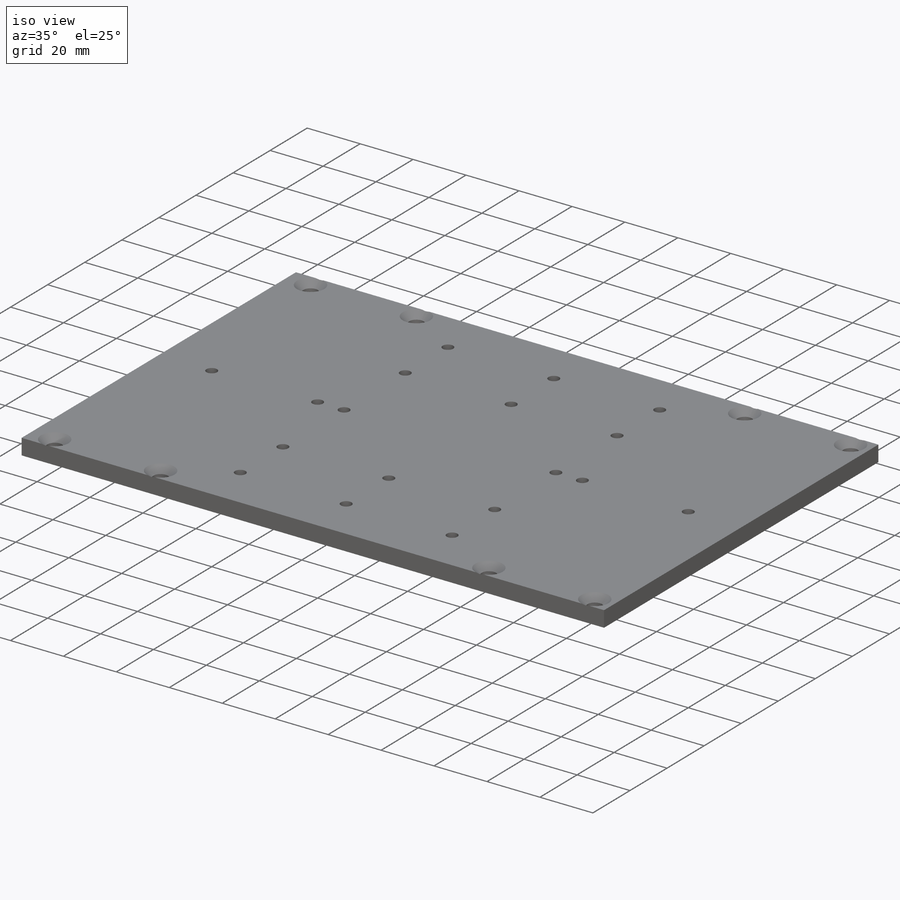
[diagram: iso view]
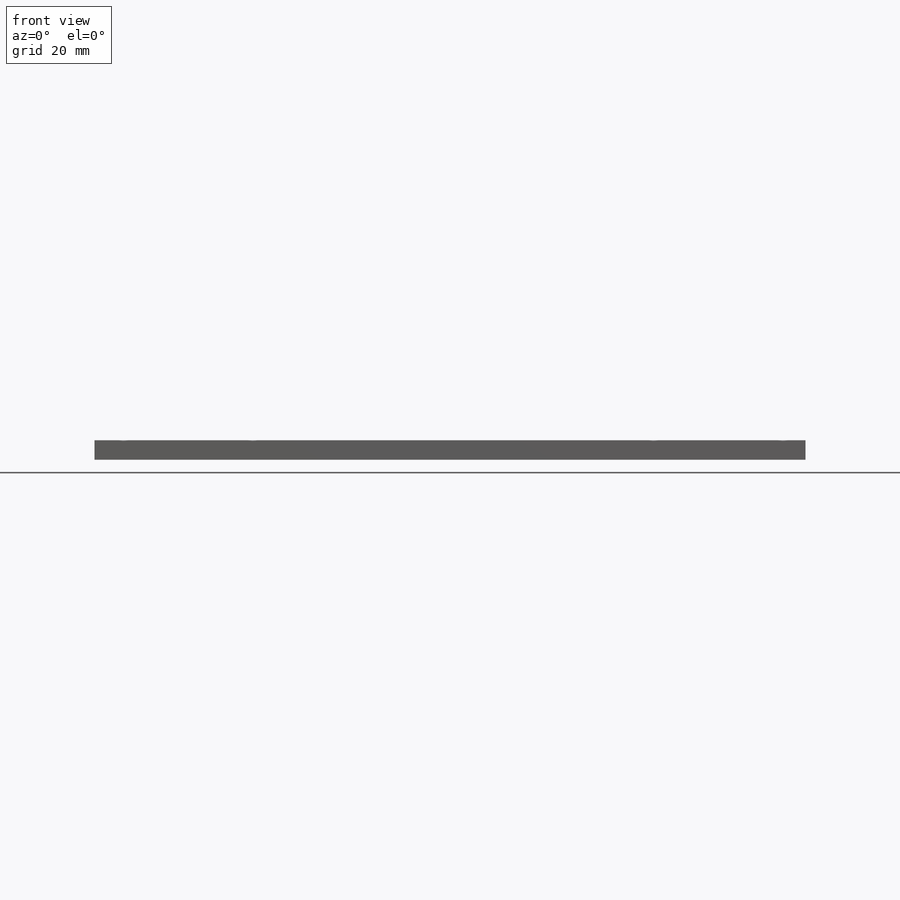
[diagram: front view]
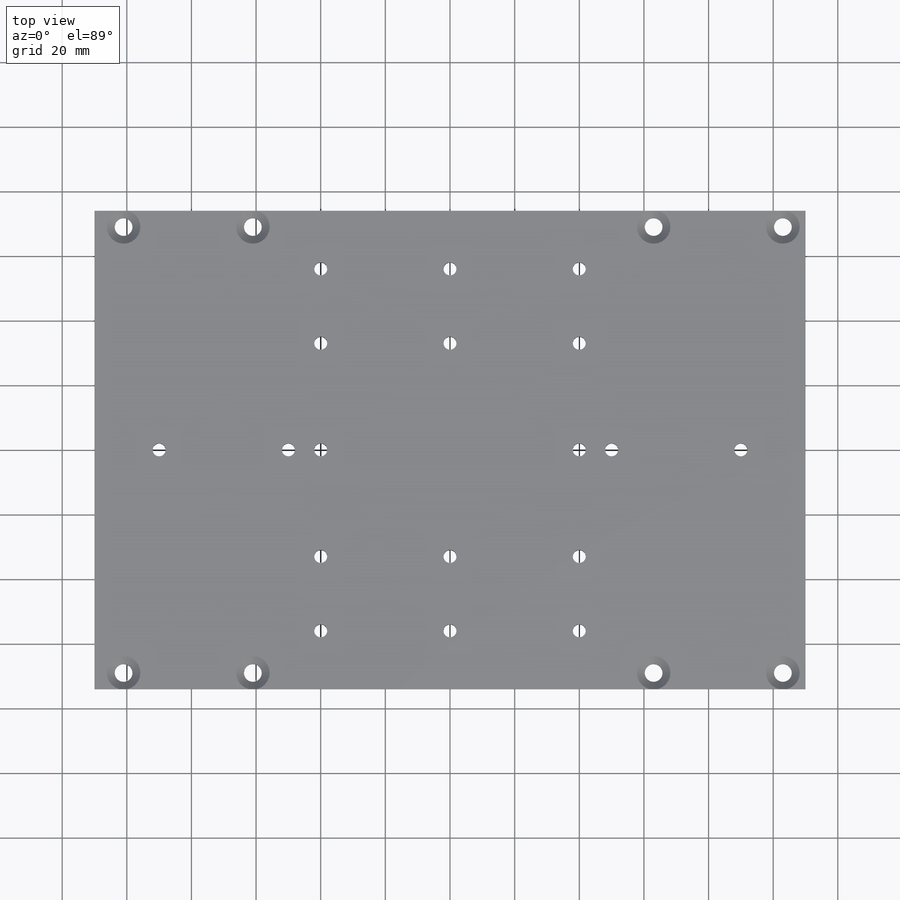
[diagram: top view]
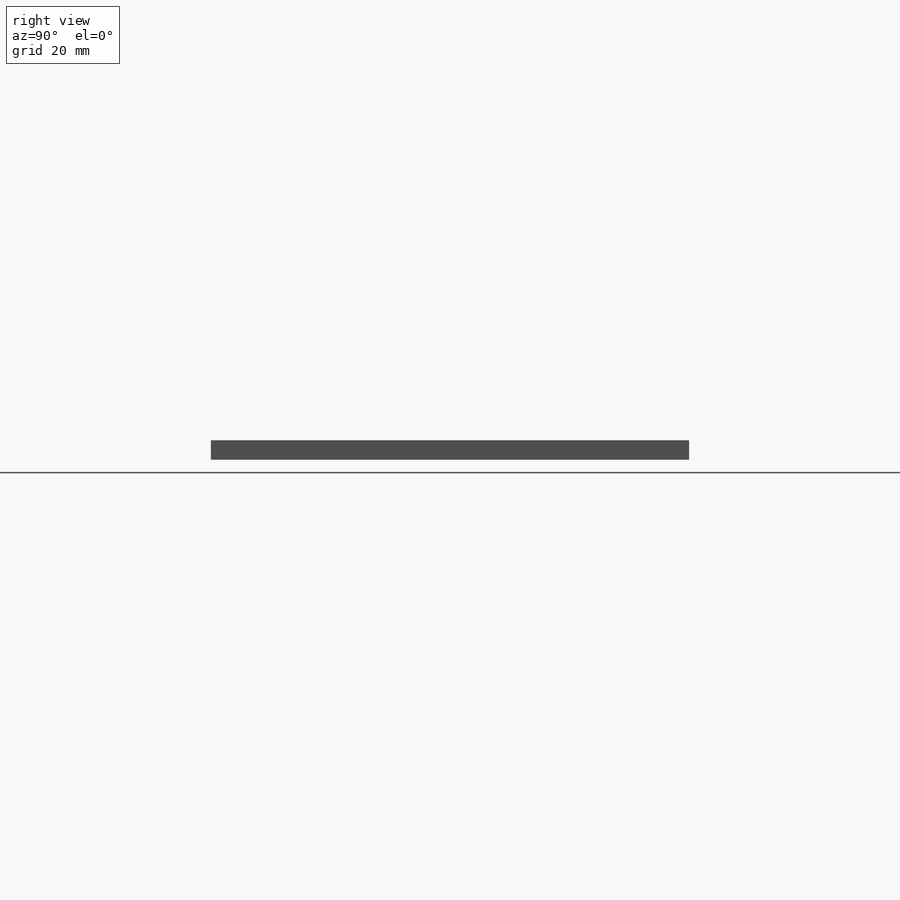
[diagram: right view]
SOLIDWORKS PART (.sldprt)
format: sldprt  version: not decoded by parser v0  size: 305,664 bytes
history: native  units: mm
features: sketch x7, hole x3, material x1, extrude x1, mirror x1 (+12 scaffold rows collapsed)
feature tree (25):
  scaffold x12  (default folders/planes/origin — collapsed)
  material  "Material <not specified>"
  sketch  "Sketch1"  dims[D1=148.0mm D2=220.0mm]
  extrude  "Boss-Extrude1"  Depth=6mm
  hole  "CSK for M5 Flat Head Machine Screw2"  Diameter=5.5mm Depth=6mm
  sketch  "Sketch5"  dims[D1=40.0mm D2=7.0mm D3=5.0mm D4=40.0mm D5=5.0mm D6=204.0mm D7=138.0mm D8=138.0mm D9=138.0mm D10=138.0mm D11=40.0mm D12=40.0mm]
  sketch  "Sketch4"  dims[hole-wizard template sketch: 55 standard entries collapsed; hole parameters kept: c17.Thru Hole Depth=6.0mm c17.Near C'Sink Dia.=10.4mm c17.D4=~3.666174mm c17.Near C'Sink Angle=90.0deg]
  hole  "Ø4.0mm Dowel Hole1"  Diameter=4mm Depth=12mm
  sketch  "Sketch7"  dims[c1.D1=18.0mm c1.D2=~20.805231mm c2.D1=18.0mm c2.D2=23.0mm c2.D3=18.0mm c2.D4=23.0mm]
  sketch  "Sketch6"  dims[hole-wizard template sketch: 47 standard entries collapsed; hole parameters kept: c15.Hole Depth=12.0mm c15.D3=~14.816244mm c15.Drill Angle=118.0deg]
  hole  "Ø4.0mm Dowel Hole2"  Diameter=4mm Depth=12mm
  sketch  "Sketch9"  dims[c1.D1=40.0mm c1.D2=10.0mm c1.D3=40.0mm c1.D4=40.0mm c1.D5=40.0mm c1.D6=40.0mm c1.D7=40.0mm c2.D4=~25.256223deg]
  sketch  "Sketch8"  dims[hole-wizard template sketch: 47 standard entries collapsed; hole parameters kept: c15.Hole Depth=12.0mm c15.D3=~14.816244mm c15.Drill Angle=118.0deg]
  mirror  "Mirror1"
decode coverage: 11 of 12 modeling features carry decoded parameters
note: ~ marks probable driven/reference dimensions
note: suppression state not decoded; provenance and decode notes live in map.json
